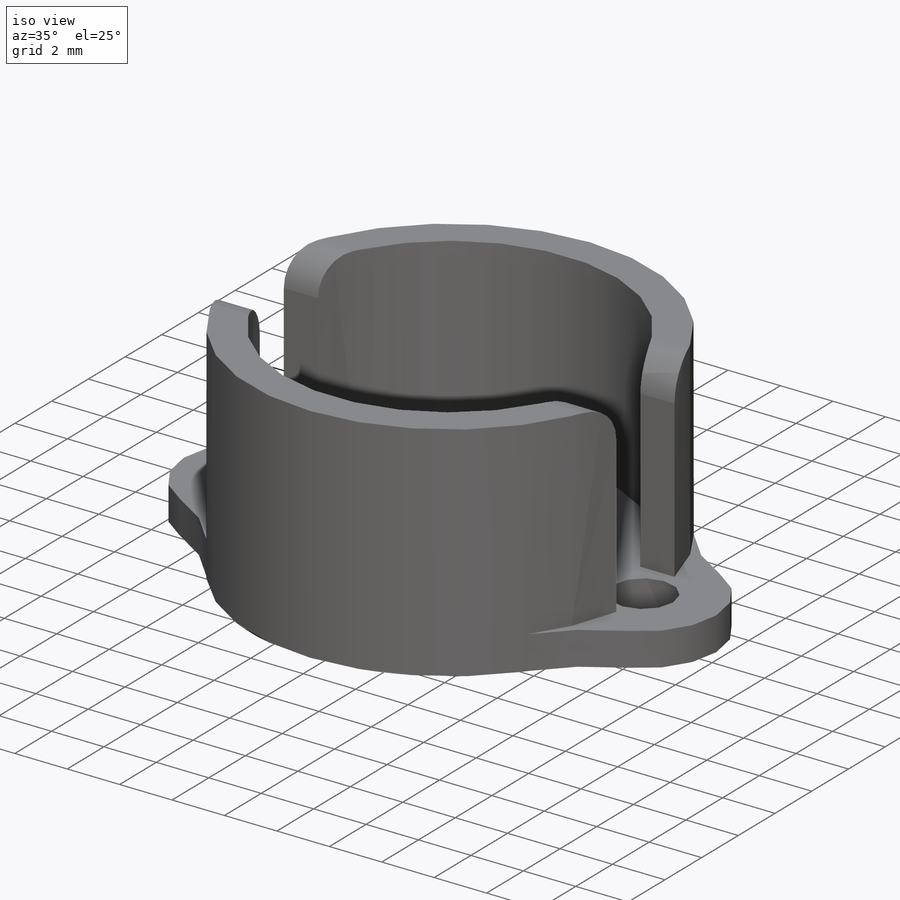
[diagram: iso view]
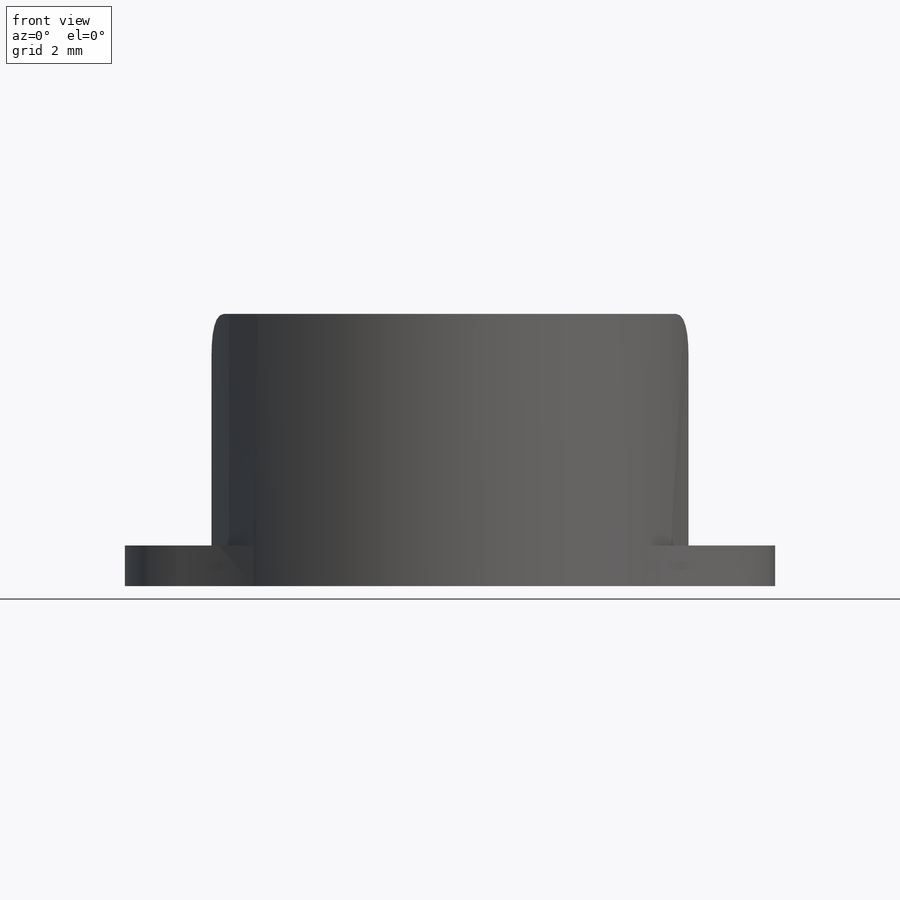
[diagram: front view]
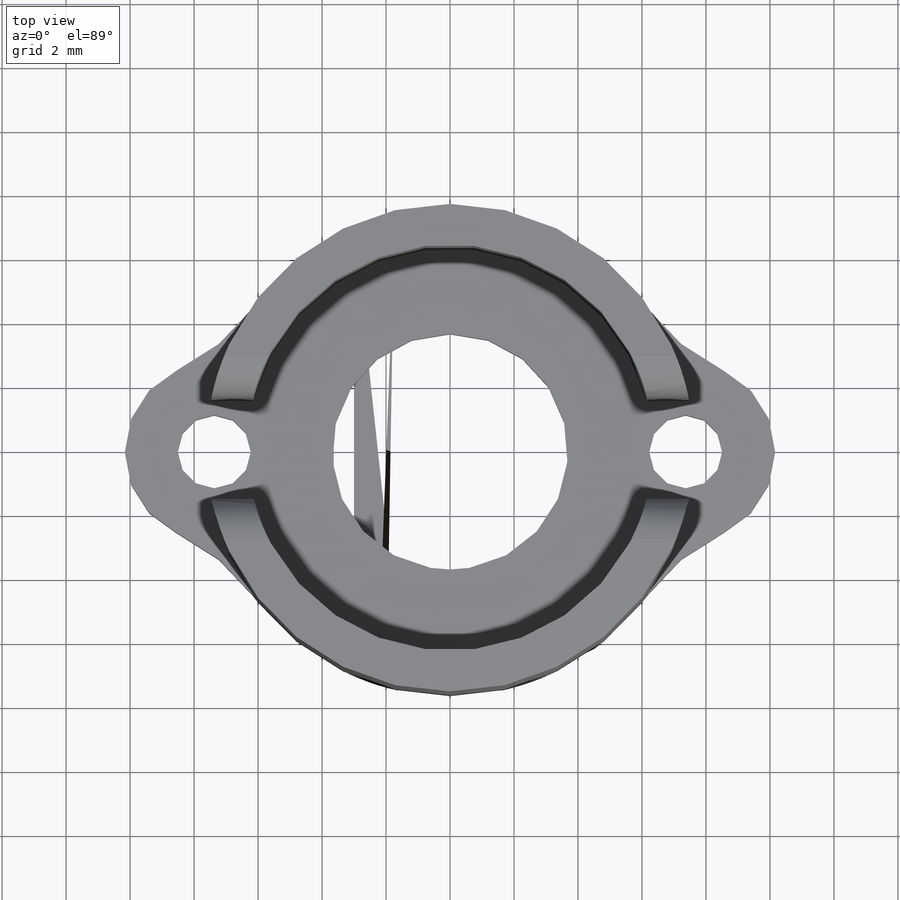
[diagram: top view]
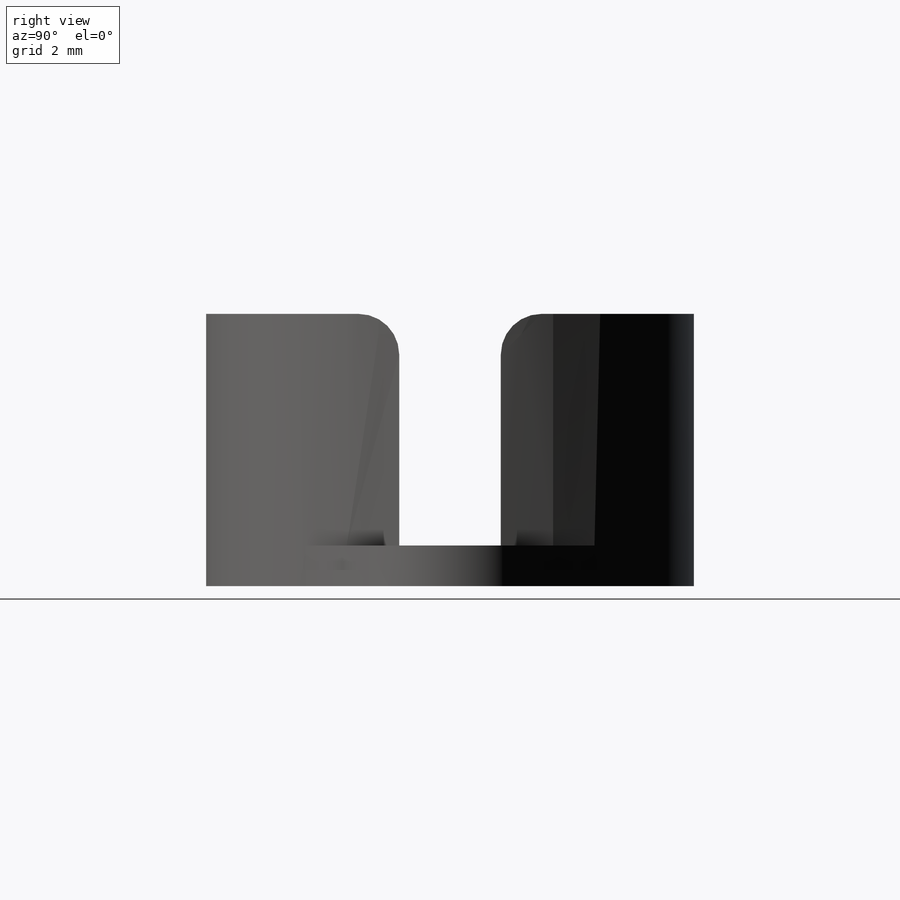
[diagram: right view]
SOLIDWORKS PART (.sldprt)
format: sldprt  version: not decoded by parser v0  size: 267,264 bytes
history: native  units: mm
features: sketch x3, extrude x2, fillet x2, material x1, cut_extrude x1 (+13 scaffold rows collapsed)
feature tree (22):
  scaffold x13  (default folders/planes/origin — collapsed)
  material  "ABS"
  sketch  "Sketch1"  dims[D2=2.286mm D4=12.7mm D5=15.24mm D6=7.366mm D1=14.732mm D3=20.32mm]
  extrude  "Boss-Extrude1"  Depth=1.27mm
  fillet  "Fillet1"  Radius=6.35mm
  sketch  "Sketch2"  dims[c1.D1=12.7mm c1.D2=5.715mm c2.D2=60.0deg c2.D3=9.525mm c3.D2=3.175mm]
  extrude  "Boss-Extrude2"  Depth=7.239mm
  sketch  "Sketch3"  dims[c1.D1=6.985mm c2.D1=6.35mm c2.D2=4.7625mm c2.D3=6.35mm]
  cut_extrude  "Cut-Extrude1"  Depth=25.4mm
  fillet  "Fillet2"  Radius=1.27mm
decode coverage: 8 of 8 modeling features carry decoded parameters
note: suppression state not decoded; provenance and decode notes live in map.json
